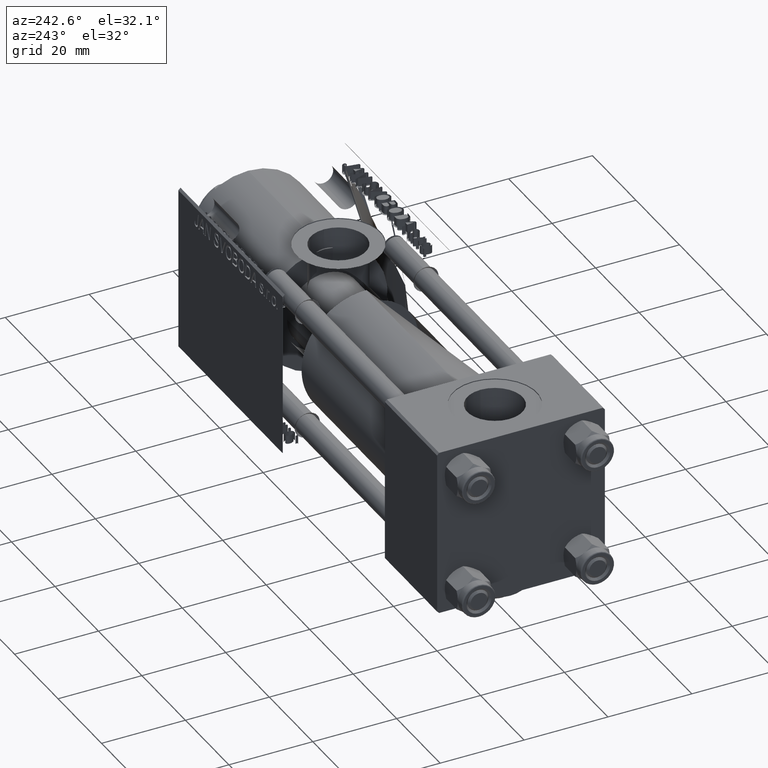
[diagram: clean part render]
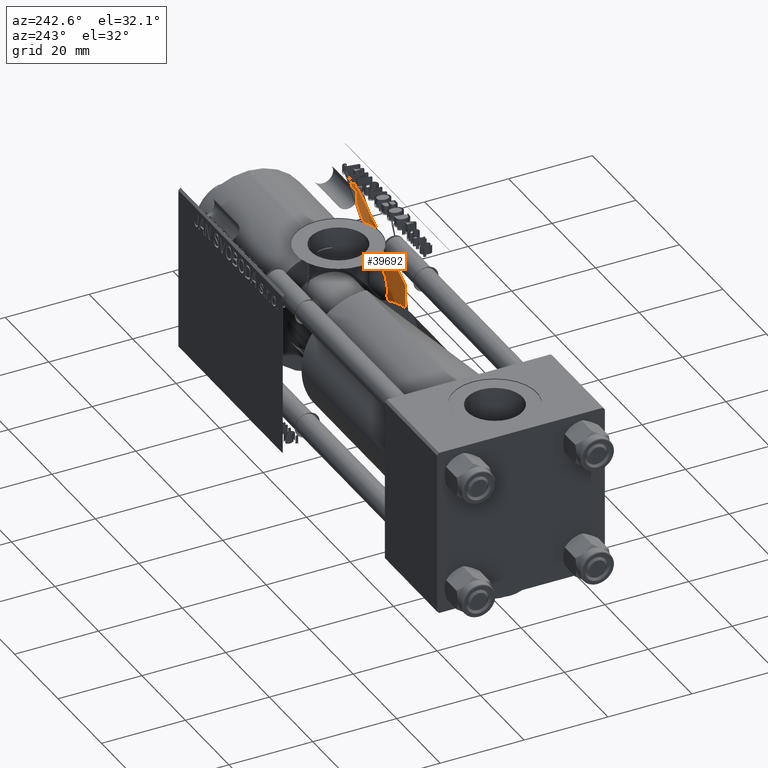
[diagram: same view with one face highlighted and labeled with its STEP entity id]
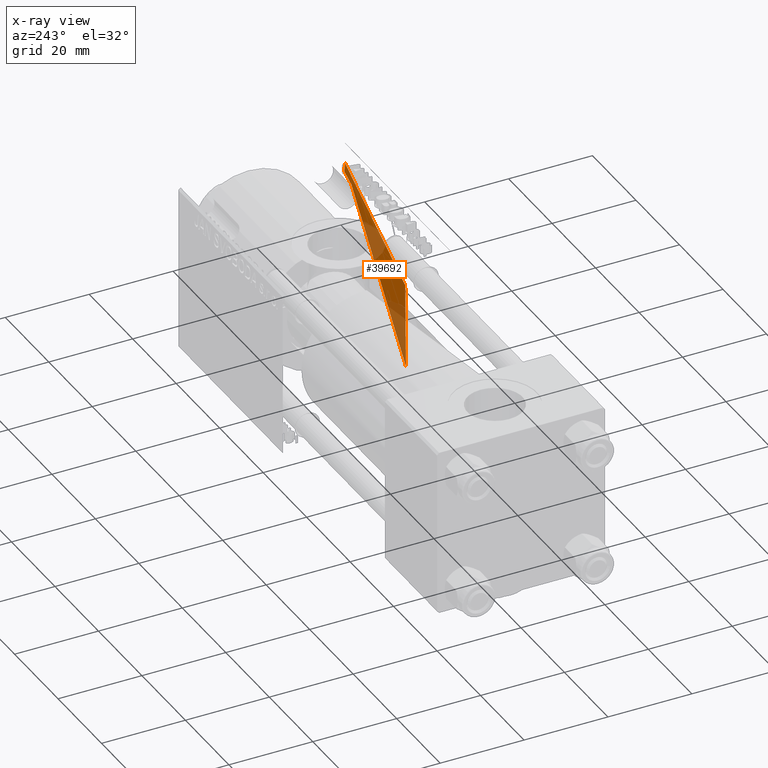
[diagram: x-ray of the same camera — body ghosted, the highlighted face saturated]
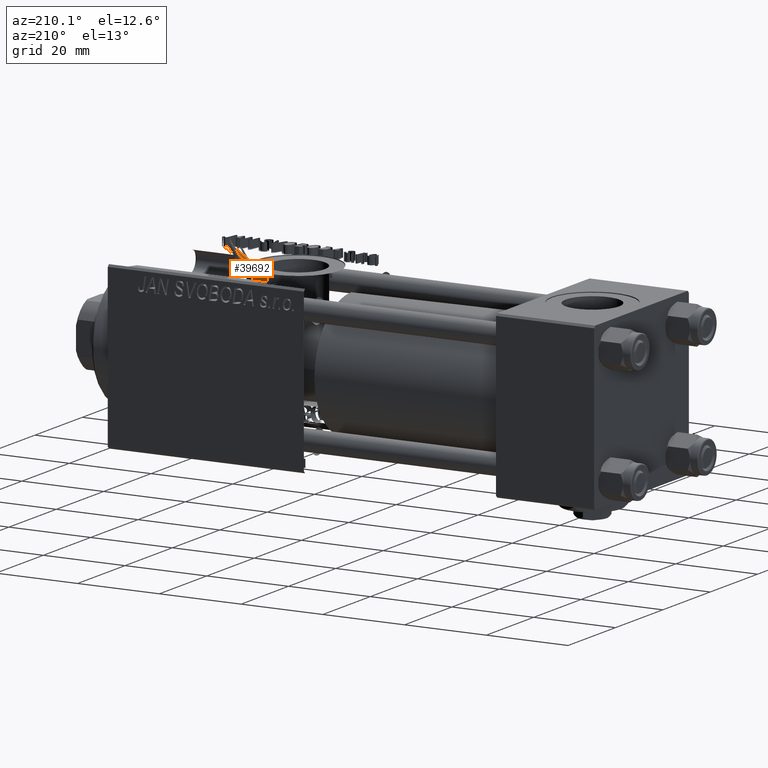
[diagram: same view with one face highlighted and labeled with its STEP entity id]
A machine part, auxiliary view. The second image highlights one B-rep face of the part: STEP entity #39692.
The next image is the same camera in x-ray: the body ghosted, the highlighted face saturated — about 42% of this face is hidden behind the body in this view.
A second angle (auxiliary view) of the same face is appended — the face is thin or edge-on in the first view.
In plain terms, the highlighted face is a freeform B-spline surface patch.
Its self-contained STEP definition (entity closure, byte-faithful):
#106 = CARTESIAN_POINT ( 'NONE',  ( 111.5589488636363598, -16.04545454545455030, 19.99999999999999645 ) ) ;
#365 = CARTESIAN_POINT ( 'NONE',  ( 111.5896744426546263, -15.78020365334549169, 18.00000000000000355 ) ) ;
#1256 = CARTESIAN_POINT ( 'NONE',  ( 111.5872089139341483, -15.88732226279211268, 18.00000000000000355 ) ) ;
#4140 = CARTESIAN_POINT ( 'NONE',  ( 111.5909090909090935, -15.72656250000000533, 18.00000000000000355 ) ) ;
#4654 = CARTESIAN_POINT ( 'NONE',  ( 111.5896744426546263, -15.78020365334549169, 18.00000000000000355 ) ) ;
#7231 = LINE ( 'NONE', #27644, #13529 ) ;
#7759 = VERTEX_POINT ( 'NONE', #36334 ) ;
#7895 = EDGE_CURVE ( 'NONE', #20122, #46119, #7231, .T. ) ;
#8212 = FACE_OUTER_BOUND ( 'NONE', #26450, .T. ) ;
#8730 = CARTESIAN_POINT ( 'NONE',  ( 111.5872089139341483, -15.88732226279211268, 18.00000000000000355 ) ) ;
#10234 = ORIENTED_EDGE ( 'NONE', *, *, #7895, .F. ) ;
#11674 = B_SPLINE_SURFACE_WITH_KNOTS ( 'NONE', 3, 1, ( 
 ( #35734, #12140 ),
 ( #365, #16839 ),
 ( #8730, #32331 ),
 ( #24196, #23683 ),
 ( #39917, #106 ) ),
 .UNSPECIFIED., .F., .F., .F.,
 ( 4, 1, 4 ),
 ( 2, 2 ),
 ( 0.000000000000000000, 0.5007640933970481933, 1.000000000000000000 ),
 ( 0.000000000000000000, 1.000000000000000000 ),
 .UNSPECIFIED. ) ;
#12140 = CARTESIAN_POINT ( 'NONE',  ( 111.5909090909090935, -15.72656250000000533, 19.99999999999999645 ) ) ;
#12292 = ORIENTED_EDGE ( 'NONE', *, *, #45196, .F. ) ;
#13066 = CARTESIAN_POINT ( 'NONE',  ( 111.5589488636363598, -16.04545454545455030, 18.00000000000000355 ) ) ;
#13529 = VECTOR ( 'NONE', #36019, 1000.000000000000000 ) ;
#15879 = DIRECTION ( 'NONE',  ( -0.000000000000000000, -0.000000000000000000, 1.000000000000000000 ) ) ;
#16139 = LINE ( 'NONE', #36056, #34747 ) ;
#16839 = CARTESIAN_POINT ( 'NONE',  ( 111.5896744426546263, -15.78020365334549169, 19.99999999999999645 ) ) ;
#20122 = VERTEX_POINT ( 'NONE', #25294 ) ;
#23683 = CARTESIAN_POINT ( 'NONE',  ( 111.5683592784809974, -15.99279751319532927, 19.99999999999999645 ) ) ;
#23898 = CARTESIAN_POINT ( 'NONE',  ( 87.60937500000001421, -18.00000000000018829, -18.09090909090891230 ) ) ;
#24196 = CARTESIAN_POINT ( 'NONE',  ( 111.5683592784809974, -15.99279751319532927, 18.00000000000000355 ) ) ;
#24477 = CARTESIAN_POINT ( 'NONE',  ( 87.60937500000001421, -18.00000000000018829, -18.09090909090891230 ) ) ;
#25294 = CARTESIAN_POINT ( 'NONE',  ( 111.5909090909090935, -15.72656250000000533, 18.00000000000000355 ) ) ;
#26450 = EDGE_LOOP ( 'NONE', ( #12292, #10234, #27326, #51550 ) ) ;
#27326 = ORIENTED_EDGE ( 'NONE', *, *, #45974, .T. ) ;
#27644 = CARTESIAN_POINT ( 'NONE',  ( 111.5909090909090935, -15.72656250000000533, 18.00000000000000355 ) ) ;
#28249 = CARTESIAN_POINT ( 'NONE',  ( 111.5683592784809974, -15.99279751319532927, 18.00000000000000355 ) ) ;
#31594 = VERTEX_POINT ( 'NONE', #24477 ) ;
#31950 = VERTEX_POINT ( 'NONE', #50518 ) ;
#31962 = VECTOR ( 'NONE', #39354, 999.9999999999998863 ) ;
#32331 = CARTESIAN_POINT ( 'NONE',  ( 111.5872089139341483, -15.88732226279211268, 19.99999999999999645 ) ) ;
#34546 = B_SPLINE_CURVE_WITH_KNOTS ( 'NONE', 3,
 ( #4140, #4654, #1256, #28249, #48917 ),
 .UNSPECIFIED., .F., .F.,
 ( 4, 1, 4 ),
 ( 0.000000000000000000, 0.5007640933970481933, 1.000000000000000000 ),
 .UNSPECIFIED. ) ;
#34747 = VECTOR ( 'NONE', #15879, 1000.000000000000000 ) ;
#35734 = CARTESIAN_POINT ( 'NONE',  ( 111.5909090909090935, -15.72656250000000533, 18.00000000000000355 ) ) ;
#36019 = DIRECTION ( 'NONE',  ( -0.000000000000000000, -0.000000000000000000, 1.000000000000000000 ) ) ;
#36056 = CARTESIAN_POINT ( 'NONE',  ( 111.5589488636363598, -16.04545454545455030, 18.00000000000000355 ) ) ;
#36334 = CARTESIAN_POINT ( 'NONE',  ( 88.06250000000001421, -18.00000000000016342, -15.40909090909072887 ) ) ;
#37659 = CARTESIAN_POINT ( 'NONE',  ( 111.5909090909090935, -15.72656250000000533, 19.99999999999999645 ) ) ;
#39354 = DIRECTION ( 'NONE',  ( 0.1666005333876188210, 1.032805814625311854E-14, 0.9860244734665367661 ) ) ;
#39692 = ADVANCED_FACE ( 'NONE', ( #8212 ), #11674, .T. ) ;
#39917 = CARTESIAN_POINT ( 'NONE',  ( 111.5589488636363598, -16.04545454545455030, 18.00000000000000355 ) ) ;
#40124 = LINE ( 'NONE', #23898, #31962 ) ;
#43655 = EDGE_CURVE ( 'NONE', #31594, #7759, #40124, .T. ) ;
#44083 = VERTEX_POINT ( 'NONE', #13066 ) ;
#45196 = ORIENTED_EDGE ( 'NONE', *, *, #43655, .T. ) ;
#45974 = EDGE_CURVE ( 'NONE', #20122, #44083, #34546, .T. ) ;
#46119 = VERTEX_POINT ( 'NONE', #37659 ) ;
#48917 = CARTESIAN_POINT ( 'NONE',  ( 111.5589488636363598, -16.04545454545455030, 18.00000000000000355 ) ) ;
#50518 = CARTESIAN_POINT ( 'NONE',  ( 111.5589488636363598, -16.04545454545455030, 20.00000000000000000 ) ) ;
#51550 = ORIENTED_EDGE ( 'NONE', *, *, #51615, .T. ) ;
#51615 = EDGE_CURVE ( 'NONE', #44083, #31950, #16139, .T. ) ;